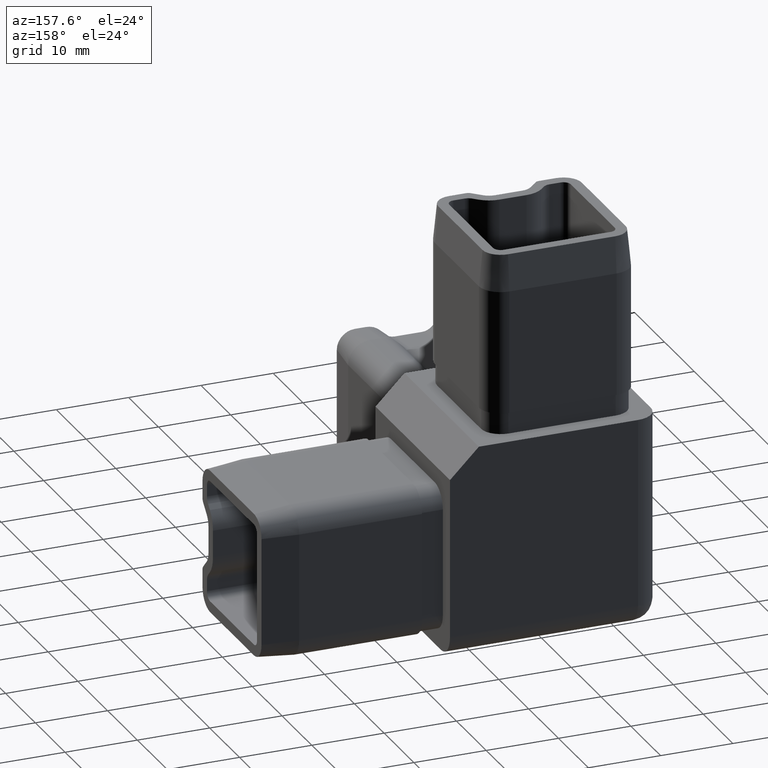
[diagram: clean part render]
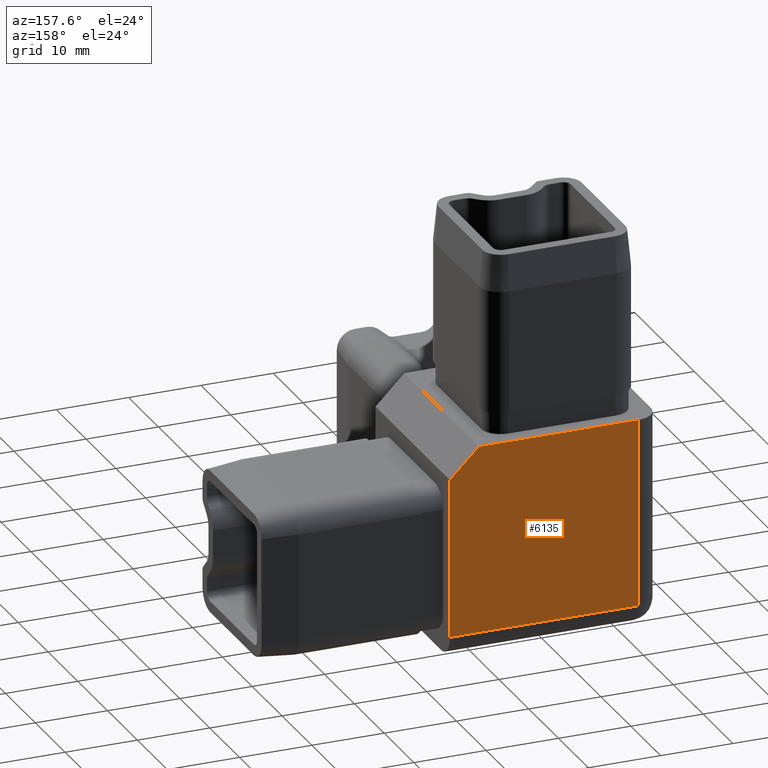
[diagram: same view with one face highlighted and labeled with its STEP entity id]
A machine part, auxiliary view. The second image highlights one B-rep face of the part: STEP entity #6135.
In plain terms, the highlighted planar face has unit normal (0, -1, 0).
Its self-contained STEP definition (entity closure, byte-faithful):
#65 = DIRECTION ( 'NONE',  ( -0.0000000000000000000, -0.0000000000000000000, -1.000000000000000000 ) ) ;
#424 = VECTOR ( 'NONE', #2830, 999.9999999999998900 ) ;
#1213 = CARTESIAN_POINT ( 'NONE',  ( 14.49999999999999600, 14.50000000000000200, -11.49999999999999500 ) ) ;
#1278 = DIRECTION ( 'NONE',  ( 0.0000000000000000000, -1.000000000000000000, 0.0000000000000000000 ) ) ;
#1507 = VECTOR ( 'NONE', #65, 1000.000000000000000 ) ;
#1765 = ORIENTED_EDGE ( 'NONE', *, *, #9463, .T. ) ;
#1985 = ORIENTED_EDGE ( 'NONE', *, *, #12023, .T. ) ;
#2302 = ORIENTED_EDGE ( 'NONE', *, *, #15502, .T. ) ;
#2830 = DIRECTION ( 'NONE',  ( 0.7071067811865469100, 0.0000000000000000000, -0.7071067811865482400 ) ) ;
#2888 = EDGE_LOOP ( 'NONE', ( #3479, #2302, #13147, #1765, #1985 ) ) ;
#3262 = DIRECTION ( 'NONE',  ( -0.0000000000000000000, -0.0000000000000000000, 1.000000000000000000 ) ) ;
#3479 = ORIENTED_EDGE ( 'NONE', *, *, #17453, .T. ) ;
#4485 = CARTESIAN_POINT ( 'NONE',  ( 10.49999999999999500, 14.50000000000000200, 14.49999999999999800 ) ) ;
#4635 = LINE ( 'NONE', #9456, #424 ) ;
#4750 = CARTESIAN_POINT ( 'NONE',  ( -14.50000000000000400, 14.50000000000000200, -11.50000000000000200 ) ) ;
#4752 = DIRECTION ( 'NONE',  ( -1.000000000000000000, -0.0000000000000000000, -0.0000000000000000000 ) ) ;
#4879 = DIRECTION ( 'NONE',  ( -1.000000000000000000, 0.0000000000000000000, 0.0000000000000000000 ) ) ;
#5737 = LINE ( 'NONE', #7972, #1507 ) ;
#5762 = VERTEX_POINT ( 'NONE', #16412 ) ;
#6127 = VERTEX_POINT ( 'NONE', #12173 ) ;
#6135 = ADVANCED_FACE ( 'NONE', ( #16598 ), #14868, .F. ) ;
#6492 = VECTOR ( 'NONE', #3262, 1000.000000000000000 ) ;
#7972 = CARTESIAN_POINT ( 'NONE',  ( 14.49999999999999600, 14.50000000000000200, 14.50000000000000000 ) ) ;
#8096 = LINE ( 'NONE', #4750, #16027 ) ;
#9456 = CARTESIAN_POINT ( 'NONE',  ( 10.49999999999999300, 14.50000000000000200, 14.49999999999999800 ) ) ;
#9463 = EDGE_CURVE ( 'NONE', #13734, #5762, #4635, .T. ) ;
#9464 = DIRECTION ( 'NONE',  ( 0.0000000000000000000, -0.0000000000000000000, -1.000000000000000000 ) ) ;
#10055 = EDGE_CURVE ( 'NONE', #13734, #10402, #11290, .T. ) ;
#10402 = VERTEX_POINT ( 'NONE', #15776 ) ;
#10790 = CARTESIAN_POINT ( 'NONE',  ( -14.50000000000000400, 14.50000000000000200, 14.50000000000000000 ) ) ;
#11290 = LINE ( 'NONE', #14222, #17682 ) ;
#12023 = EDGE_CURVE ( 'NONE', #5762, #12970, #5737, .T. ) ;
#12058 = LINE ( 'NONE', #16265, #6492 ) ;
#12173 = CARTESIAN_POINT ( 'NONE',  ( -11.50000000000000400, 14.50000000000000200, -11.50000000000000200 ) ) ;
#12970 = VERTEX_POINT ( 'NONE', #1213 ) ;
#13147 = ORIENTED_EDGE ( 'NONE', *, *, #10055, .F. ) ;
#13734 = VERTEX_POINT ( 'NONE', #4485 ) ;
#13811 = AXIS2_PLACEMENT_3D ( 'NONE', #10790, #1278, #9464 ) ;
#14222 = CARTESIAN_POINT ( 'NONE',  ( -14.50000000000000400, 14.50000000000000200, 14.50000000000000000 ) ) ;
#14868 = PLANE ( 'NONE',  #13811 ) ;
#15502 = EDGE_CURVE ( 'NONE', #6127, #10402, #12058, .T. ) ;
#15776 = CARTESIAN_POINT ( 'NONE',  ( -11.50000000000000400, 14.50000000000000200, 14.50000000000000000 ) ) ;
#16027 = VECTOR ( 'NONE', #4879, 1000.000000000000000 ) ;
#16265 = CARTESIAN_POINT ( 'NONE',  ( -11.50000000000000400, 14.50000000000000200, 14.50000000000000000 ) ) ;
#16412 = CARTESIAN_POINT ( 'NONE',  ( 14.49999999999999600, 14.50000000000000200, 10.49999999999999100 ) ) ;
#16598 = FACE_OUTER_BOUND ( 'NONE', #2888, .T. ) ;
#17453 = EDGE_CURVE ( 'NONE', #12970, #6127, #8096, .T. ) ;
#17682 = VECTOR ( 'NONE', #4752, 1000.000000000000000 ) ;